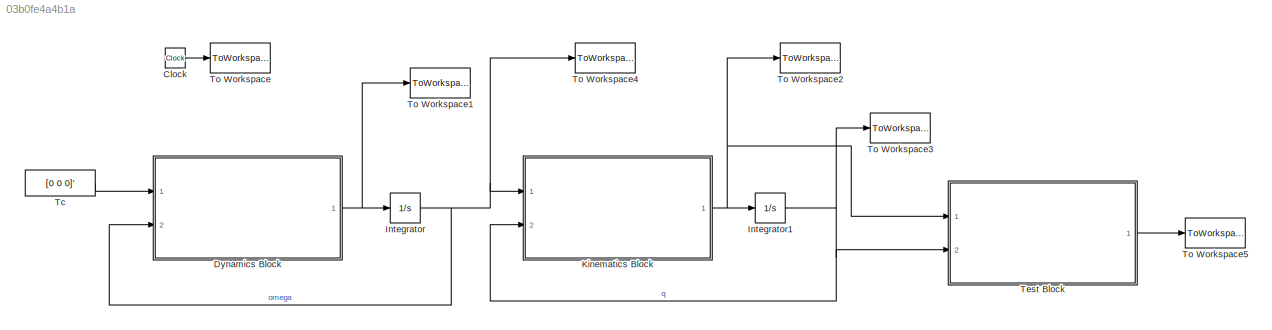
MODEL slx_03b0fe4a4b1a
KIND model
CONFIG AbsTol = auto
CONFIG EnableMultiTasking = off
CONFIG FixedStep = auto
CONFIG MaxStep = auto
CONFIG MinStep = auto
CONFIG RelTol = auto
CONFIG SampleTimeConstraint = Unconstrained
CONFIG Solver = VariableStepAuto
CONFIG SolverName = VariableStepAuto
CONFIG StartTime = 0.0
CONFIG StopTime = 10
BLOCK [Clock] Clock
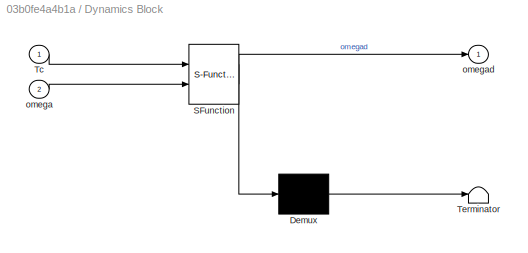
BLOCK [SubSystem] Dynamics Block
  ErrorFcn = Stateflow.Translate.translate
  PermitHierarchicalResolution = ExplicitOnly
  Ports = [2, 1]
  RequestExecContextInheritance = off
  SFBlockType = MATLAB Function
  TreatAsAtomicUnit = on
BLOCK [Demux] Dynamics Block/ Demux 
  Outputs = 1
  Ports = [1, 1]
BLOCK [S-Function] Dynamics Block/ SFunction 
  EnableBusSupport = on
  FunctionName = sf_sfun
  Parameters = J
  PortCounts = [2 2]
  Ports = [2, 2]
  SFcnIsStateOwnerBlock = off
  SFunctionDeploymentMode = off
  Tag = Stateflow S-Function tumbling_sim_v2 2
BLOCK [Terminator] Dynamics Block/ Terminator 
BLOCK [Inport] Dynamics Block/Tc
  IconDisplay = Port number
BLOCK [Inport] Dynamics Block/omega
  IconDisplay = Port number
  Port = 2
BLOCK [Outport] Dynamics Block/omegad
  IconDisplay = Port number
BLOCK [Integrator] Integrator
  InitialCondition = omega0
  Ports = [1, 1]
BLOCK [Integrator] Integrator1
  InitialCondition = q0
  Ports = [1, 1]
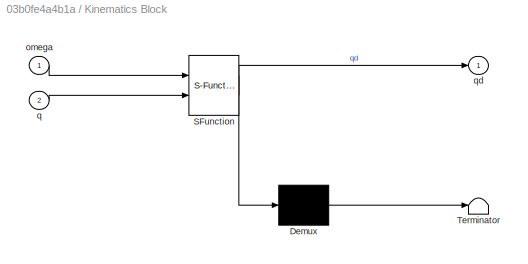
BLOCK [SubSystem] Kinematics Block
  ErrorFcn = Stateflow.Translate.translate
  PermitHierarchicalResolution = ExplicitOnly
  Ports = [2, 1]
  RequestExecContextInheritance = off
  SFBlockType = MATLAB Function
  TreatAsAtomicUnit = on
BLOCK [Demux] Kinematics Block/ Demux 
  Outputs = 1
  Ports = [1, 1]
BLOCK [S-Function] Kinematics Block/ SFunction 
  EnableBusSupport = on
  FunctionName = sf_sfun
  PortCounts = [2 2]
  Ports = [2, 2]
  SFcnIsStateOwnerBlock = off
  SFunctionDeploymentMode = off
  Tag = Stateflow S-Function tumbling_sim_v2 1
BLOCK [Terminator] Kinematics Block/ Terminator 
BLOCK [Inport] Kinematics Block/omega
  IconDisplay = Port number
BLOCK [Inport] Kinematics Block/q
  IconDisplay = Port number
  Port = 2
BLOCK [Outport] Kinematics Block/qd
  IconDisplay = Port number
BLOCK [Constant] Tc
  Value = [0 0 0]'
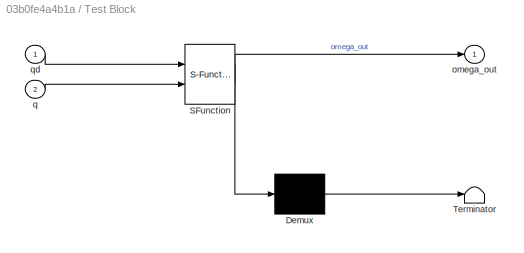
BLOCK [SubSystem] Test Block
  ErrorFcn = Stateflow.Translate.translate
  PermitHierarchicalResolution = ExplicitOnly
  Ports = [2, 1]
  RequestExecContextInheritance = off
  SFBlockType = MATLAB Function
  TreatAsAtomicUnit = on
BLOCK [Demux] Test Block/ Demux 
  Outputs = 1
  Ports = [1, 1]
BLOCK [S-Function] Test Block/ SFunction 
  EnableBusSupport = on
  FunctionName = sf_sfun
  PortCounts = [2 2]
  Ports = [2, 2]
  SFcnIsStateOwnerBlock = off
  SFunctionDeploymentMode = off
  Tag = Stateflow S-Function tumbling_sim_v2 3
BLOCK [Terminator] Test Block/ Terminator 
BLOCK [Outport] Test Block/omega_out
  IconDisplay = Port number
BLOCK [Inport] Test Block/q
  IconDisplay = Port number
  Port = 2
BLOCK [Inport] Test Block/qd
  IconDisplay = Port number
BLOCK [ToWorkspace] To Workspace
  MaxDataPoints = inf
  Ports = [1]
  SampleTime = -1
  VariableName = t
BLOCK [ToWorkspace] To Workspace1
  MaxDataPoints = inf
  Ports = [1]
  SampleTime = -1
  VariableName = omegad
BLOCK [ToWorkspace] To Workspace2
  MaxDataPoints = inf
  Ports = [1]
  SampleTime = -1
  VariableName = qd
BLOCK [ToWorkspace] To Workspace3
  MaxDataPoints = inf
  Ports = [1]
  SampleTime = -1
  VariableName = q
BLOCK [ToWorkspace] To Workspace4
  MaxDataPoints = inf
  Ports = [1]
  SampleTime = -1
  VariableName = omega
BLOCK [ToWorkspace] To Workspace5
  MaxDataPoints = inf
  Ports = [1]
  SampleTime = -1
  VariableName = omega_calc
LINE Clock:1 -> To Workspace:1
NET Dynamics Block:1 -> Integrator:1, To Workspace1:1
NET Integrator1:1 -> Kinematics Block:2, Test Block:2, To Workspace3:1
NET Integrator:1 -> Dynamics Block:2, Kinematics Block:1, To Workspace4:1
NET Kinematics Block:1 -> Integrator1:1, Test Block:1, To Workspace2:1
LINE Tc:1 -> Dynamics Block:1
LINE Test Block:1 -> To Workspace5:1
note: NET lines group one-source signal fan-out (src -> all destinations, sorted); 1:1 wires keep LINE
CHART Kinematics Block states=1 transitions=1
  STATE_LABEL 'eML_blk_kernel()'
  STATE_LABEL 'SCRIPT:\nfunction qd = tumbling_kinematics(omega, q)\n\nOmega = [0 -omega(1) -omega(2) -omega(3);\n         omega(1) 0 omega(3) -omega(2);\n         omega(2) -omega(3) 0 omega(1);\n         omega(3) omega(2) -omega(1) 0];\n\nqd = 0.5*Omega*q;\n'
CHART Dynamics Block states=1 transitions=1
  STATE_LABEL 'eML_blk_kernel()'
  STATE_LABEL 'SCRIPT:\nfunction omegad = tumbling_dynamics(Tc, omega, J)\n\nomegad = J\\(Tc-cross(omega,J*omega));'
CHART Test Block states=1 transitions=1
  STATE_LABEL 'eML_blk_kernel()'
  STATE_LABEL 'SCRIPT:\nfunction omega_out = test_block(qd, q)\n\nH = 2*[-q(2) q(1) q(4) -q(3);\n       -q(3) -q(4) q(1) q(2);\n       -q(4) q(3) -q(2) q(1)];\n\nomega_out = H*qd;'
